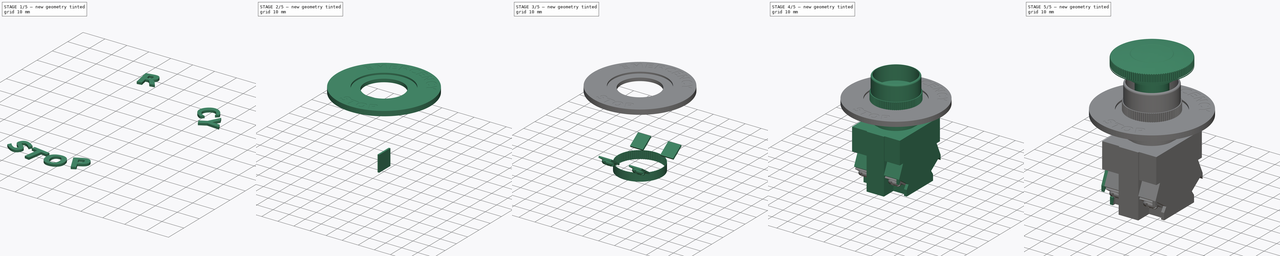
[diagram: build sequence overview — one tinted view per stage of 5, left to right]
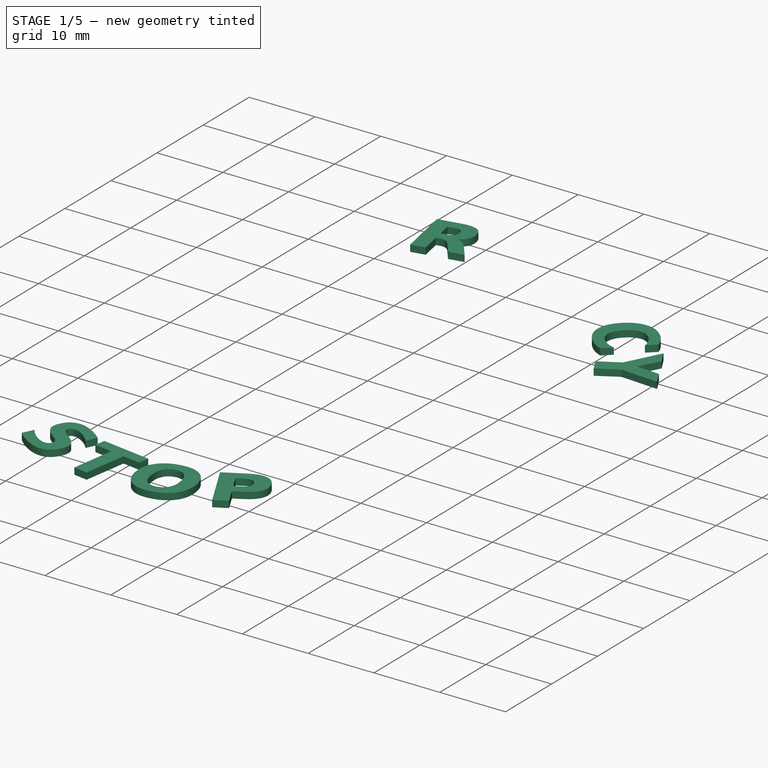
[diagram: stage 1 of 5 — iso view after this stage's code; geometry added in this stage tinted green]
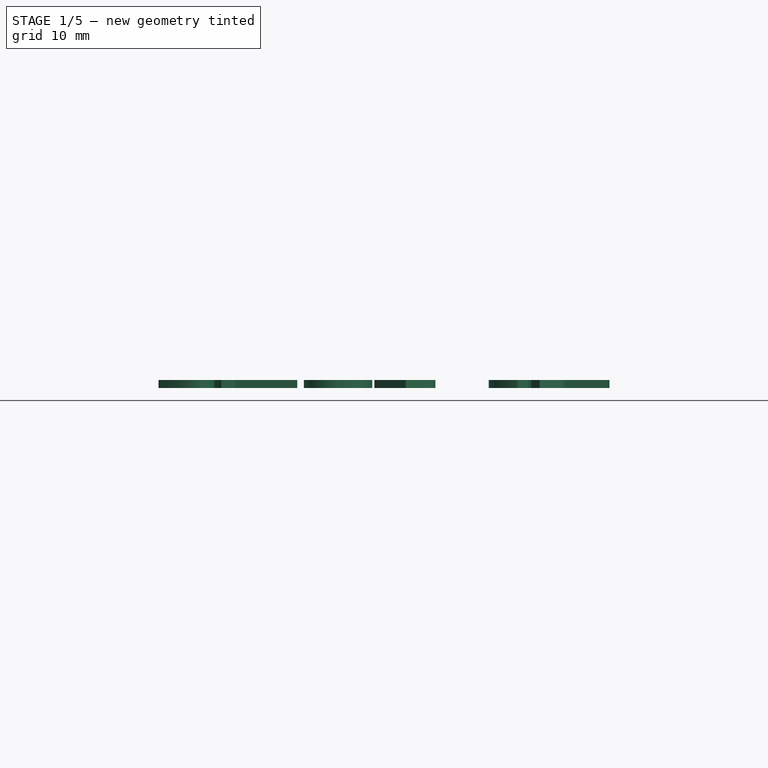
[diagram: stage 1 of 5 — front view after this stage's code; geometry added in this stage tinted green]
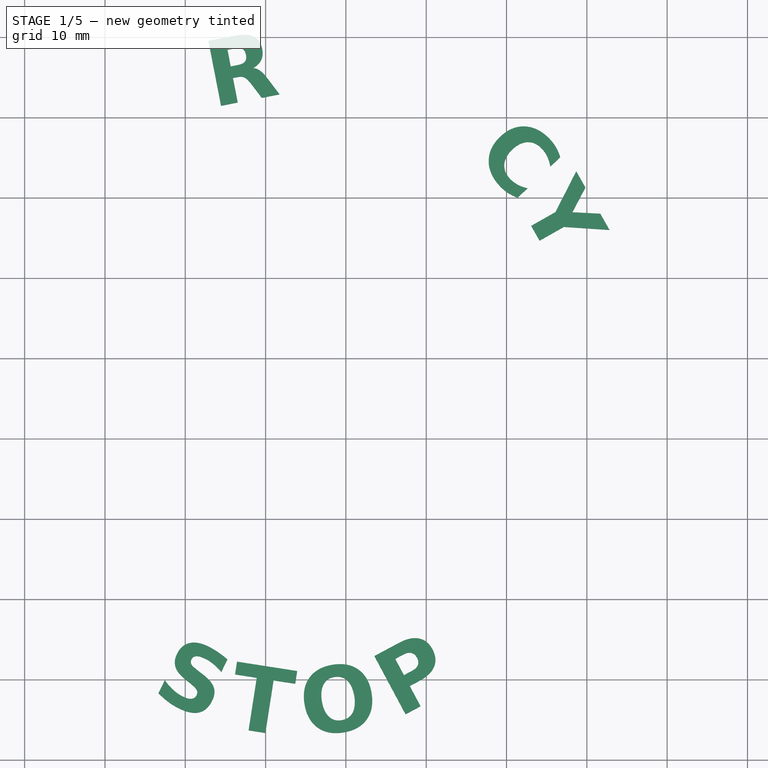
[diagram: stage 1 of 5 — top view after this stage's code; geometry added in this stage tinted green]
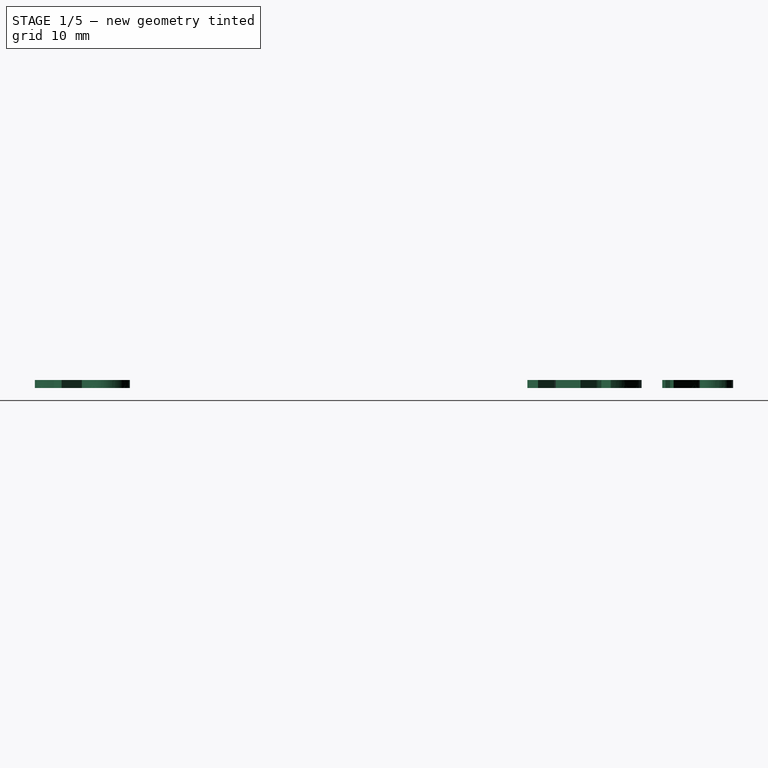
[diagram: stage 1 of 5 — right view after this stage's code; geometry added in this stage tinted green]
FCSTD DOCUMENT  (FreeCAD 0.16R6707 (Git))
Label: EmergencyButtonLAY37
License: All rights reserved
LicenseURL: http://en.wikipedia.org/wiki/All_rights_reserved
objects: Part::Feature×16, Part::Extrusion×16, Part::FeaturePython×11, Sketcher::SketchObject×8, Part::Cut×8, PartDesign::Revolution×4, PartDesign::Pad×4, Part::Cylinder×4, Part::Box×4, Part::MultiFuse×4, Part::Compound×4, Part::Mirroring×2, Part::Torus×1, Part::Fillet×1, App::DocumentObjectGroup×1
note: 95 computed .brp shape members not serialized (recipe doc carries the construction recipe); baked Part::Feature solids carry a one-line shape summary decoded from their .brp

FEATURE [Part::Extrusion] Extrude003
  Base = -> path4270
  Dir = (0,0,1)
  Solid = true
FEATURE [Part::Extrusion] Extrude004
  Base = -> path4270001
  Dir = (0,0,1)
  Solid = true
FEATURE [Part::Extrusion] Extrude008
  Base = -> path4278
  Dir = (0,0,1)
  Solid = true
FEATURE [Part::Extrusion] Extrude009
  Base = -> path4280
  Dir = (0,0,1)
  Solid = true
FEATURE [Part::Extrusion] Extrude012
  Base = -> path4283
  Dir = (0,0,1)
  Solid = true
FEATURE [Part::Extrusion] Extrude013
  Base = -> path4285
  Dir = (0,0,1)
  Solid = true
FEATURE [Part::Extrusion] Extrude014
  Base = -> path4287
  Dir = (0,0,1)
  Solid = true
FEATURE [Part::Extrusion] Extrude015
  Base = -> path4287001
  Dir = (0,0,1)
  Solid = true
FEATURE [Part::Extrusion] Extrude016
  Base = -> path4289
  Dir = (0,0,1)
  Solid = true
FEATURE [Part::Extrusion] Extrude017
  Base = -> path4289001
  Dir = (0,0,1)
  Solid = true
FEATURE [Part::Cut] Cut004
  Base = -> Extrude004
  Tool = -> Extrude003
FEATURE [Part::Cut] Cut005
  Base = -> Extrude016
  Tool = -> Extrude017
FEATURE [Part::Cut] Cut006
  Base = -> Extrude015
  Tool = -> Extrude014
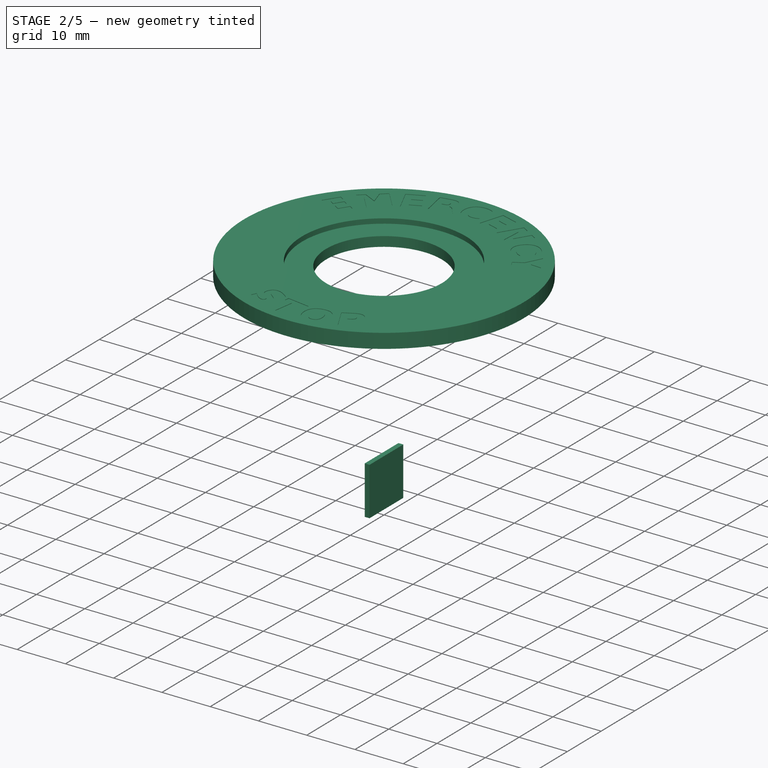
[diagram: stage 2 of 5 — iso view after this stage's code; geometry added in this stage tinted green]
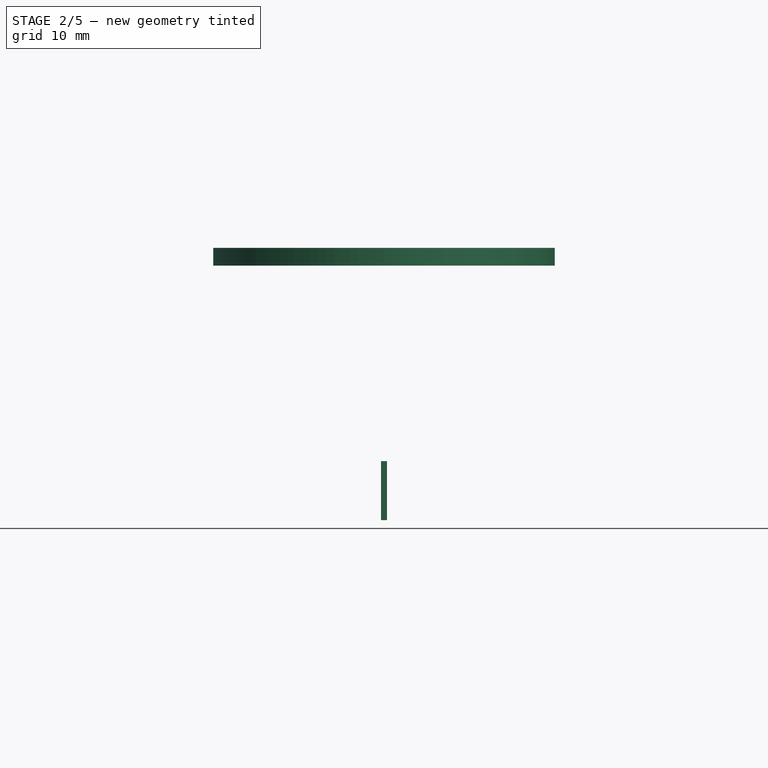
[diagram: stage 2 of 5 — front view after this stage's code; geometry added in this stage tinted green]
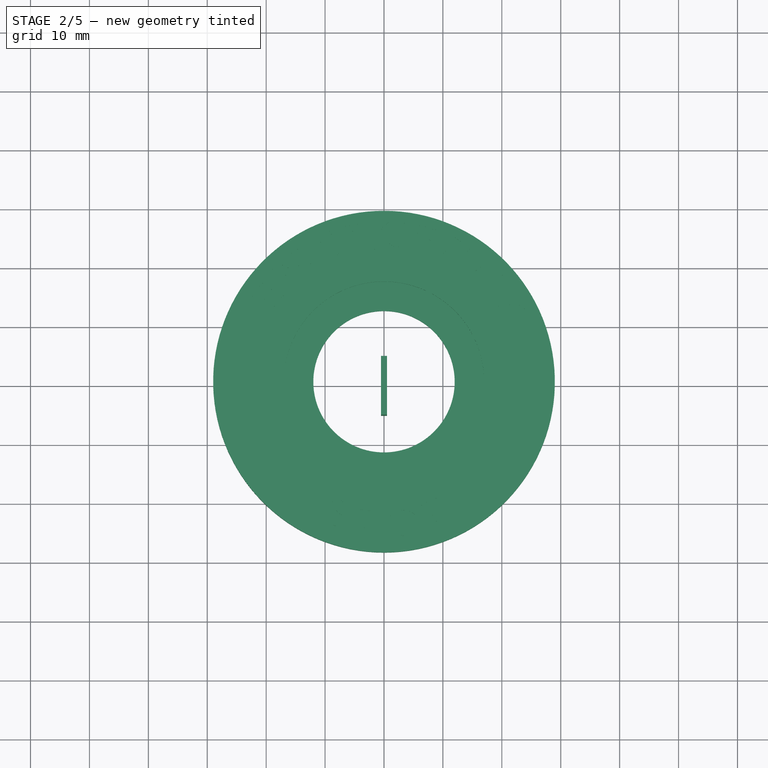
[diagram: stage 2 of 5 — top view after this stage's code; geometry added in this stage tinted green]
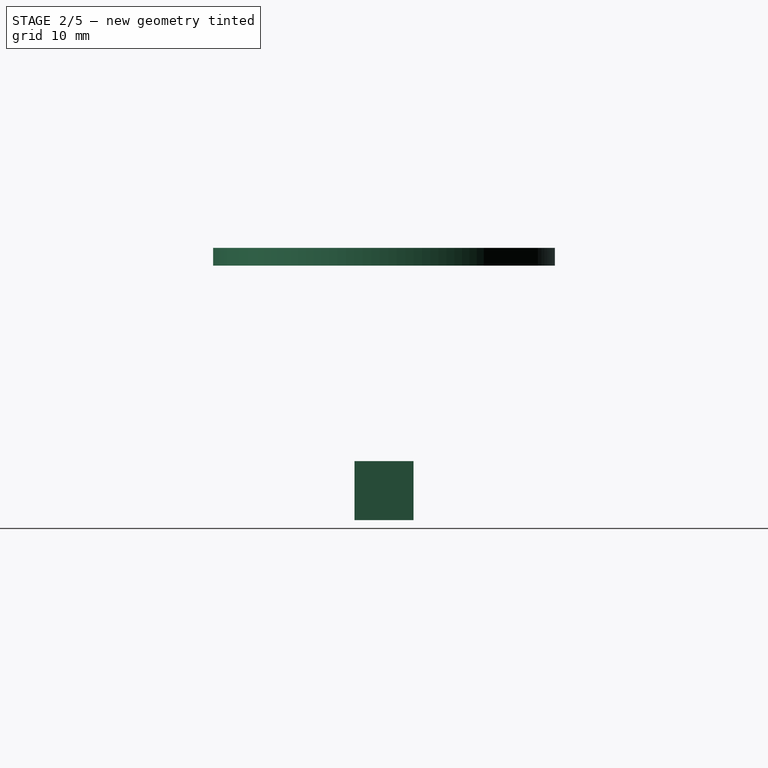
[diagram: stage 2 of 5 — right view after this stage's code; geometry added in this stage tinted green]
FEATURE [Part::Box] Box004  label="Cube004"
  Height = 10
  Length = 1
  Placement = pos=(-0.5,-5,1.8) rot=(0,0,1;0rad)
  Width = 10
FEATURE [Sketcher::SketchObject] Sketch007
  Placement = pos=(0,0,0) rot=(0.57735,0.57735,0.57735;2.0944rad)
  sketch-geometry (6):
    g0: LineSegment StartX=12 StartY=2 StartZ=0 EndX=17 EndY=2 EndZ=0
    g1: LineSegment StartX=17 StartY=2 StartZ=0 EndX=17 EndY=3 EndZ=0
    g2: LineSegment StartX=17 StartY=3 StartZ=0 EndX=29 EndY=3 EndZ=0
    g3: LineSegment StartX=29 StartY=3 StartZ=0 EndX=29 EndY=0 EndZ=0
    g4: LineSegment StartX=29 StartY=0 StartZ=0 EndX=12 EndY=0 EndZ=0
    g5: LineSegment StartX=12 StartY=0 StartZ=0 EndX=12 EndY=2 EndZ=0
  constraints (18):
    c: Coincident(g0,g1)
    c: Coincident(g1,g2)
    c: Horizontal(g2)
    c: Coincident(g2,g3)
    c: PointOnObject(g3,g-1)
    c: Vertical(g3)
    c: Coincident(g3,g4)
    c: PointOnObject(g4,g-1)
    c: Coincident(g4,g5)
    c: Coincident(g5,g0)
    c: Vertical(g5)
    c: Horizontal(g0)
    c: DistanceY(g3,g3) = 3
    c: Vertical(g1)
    c: DistanceY(g5,g5) = 2
    c: DistanceX(g0,g0) = 5
    c: DistanceX(g-1,g4) = 12
    c: DistanceX(g-1,g3) = 29
FEATURE [PartDesign::Revolution] Revolution003
  Angle = 360
  Axis = (0,0,1)
  Base = (0,0,0)
  Placement = pos=(0,0,0) rot=(0.57735,0.57735,0.57735;2.0944rad)
  ReferenceAxis = -> Sketch007 [V_Axis]
  Reversed = true
  Sketch = -> Sketch007
FEATURE [Part::Feature] path4264
  shape: bbox 10.09 x 9.286 x 2e-07 mm, 0 faces, 0 solids (baked)
FEATURE [Part::Feature] path4266
  shape: bbox 12.31 x 12.21 x 2e-07 mm, 0 faces, 0 solids (baked)
FEATURE [Part::Feature] path4268
  shape: bbox 8.763 x 9.874 x 2e-07 mm, 0 faces, 0 solids (baked)
FEATURE [Part::Feature] path4270
  shape: bbox 2.373 x 2.335 x 2e-07 mm, 0 faces, 0 solids (baked)
FEATURE [Part::Feature] path4270001
  shape: bbox 8.867 x 8.929 x 2e-07 mm, 0 faces, 0 solids (baked)
FEATURE [Part::Feature] path4272
  shape: bbox 7.317 x 8.67 x 2e-07 mm, 0 faces, 0 solids (baked)
FEATURE [Part::Feature] path4274
  shape: bbox 7.88 x 9.578 x 2e-07 mm, 0 faces, 0 solids (baked)
FEATURE [Part::Feature] path4276
  shape: bbox 10.58 x 10.87 x 2e-07 mm, 0 faces, 0 solids (baked)
FEATURE [Part::Feature] path4278
  shape: bbox 8.912 x 8.951 x 2e-07 mm, 0 faces, 0 solids (baked)
FEATURE [Part::Feature] path4280
  shape: bbox 9.753 x 8.635 x 2e-07 mm, 0 faces, 0 solids (baked)
FEATURE [Part::Feature] path4283
  shape: bbox 8.591 x 8.947 x 2e-07 mm, 0 faces, 0 solids (baked)
FEATURE [Part::Feature] path4285
  shape: bbox 7.741 x 8.878 x 2e-07 mm, 0 faces, 0 solids (baked)
FEATURE [Part::Feature] path4287
  shape: bbox 4.312 x 5.608 x 2e-07 mm, 0 faces, 0 solids (baked)
FEATURE [Part::Feature] path4287001
  shape: bbox 8.789 x 8.857 x 2e-07 mm, 0 faces, 0 solids (baked)
FEATURE [Part::Feature] path4289
  shape: bbox 7.691 x 9.583 x 2e-07 mm, 0 faces, 0 solids (baked)
FEATURE [Part::Feature] path4289001
  shape: bbox 2.91 x 2.834 x 2e-07 mm, 0 faces, 0 solids (baked)
FEATURE [Part::Extrusion] Extrude
  Base = -> path4264
  Dir = (0,0,1)
  Solid = true
FEATURE [Part::Extrusion] Extrude001
  Base = -> path4266
  Dir = (0,0,1)
  Solid = true
FEATURE [Part::Extrusion] Extrude002
  Base = -> path4268
  Dir = (0,0,1)
  Solid = true
FEATURE [Part::Extrusion] Extrude005
  Base = -> path4272
  Dir = (0,0,1)
  Solid = true
FEATURE [Part::Extrusion] Extrude006
  Base = -> path4274
  Dir = (0,0,1)
  Solid = true
FEATURE [Part::Extrusion] Extrude007
  Base = -> path4276
  Dir = (0,0,1)
  Solid = true
FEATURE [Part::Compound] Compound003  label="EmergencyLetters"
  Links = -> [Cut006,Cut005,Cut004,Extrude013,Extrude006,Extrude012,Extrude001,Extrude007,Extrude008,Extrude005,Extrude,Extrude009,Extrude002]
FEATURE [Part::FeaturePython] Clone009  label="Clone of EmergencyLetters"  # Draft clone (typed FeaturePython)
  Objects = -> [Compound003]
  Placement = pos=(-21,163,2.9) rot=(0,0,1;0rad)
  Scale = (0.62,0.62,1)
FEATURE [Part::Cut] Cut007  label="TextDisk"
  Base = -> Revolution003
  Tool = -> Clone009
FEATURE [App::DocumentObjectGroup] Group  label="Master"
  Group = -> [Cut001,Pad001,Fusion001,Cut002,Fusion003,Cut007,Compound003]
FEATURE [Part::FeaturePython] Clone010  label="Clone of TextDisk"  # Draft clone (typed FeaturePython)
  Objects = -> [Cut007]
  Placement = pos=(0,0,45) rot=(0,0,1;0rad)
  Scale = (1,1,1)
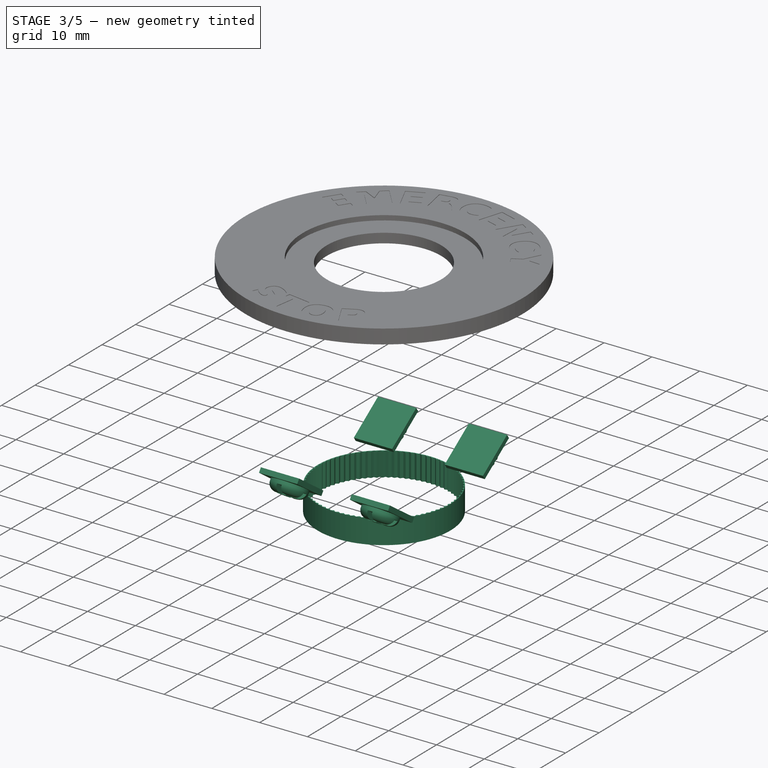
[diagram: stage 3 of 5 — iso view after this stage's code; geometry added in this stage tinted green]
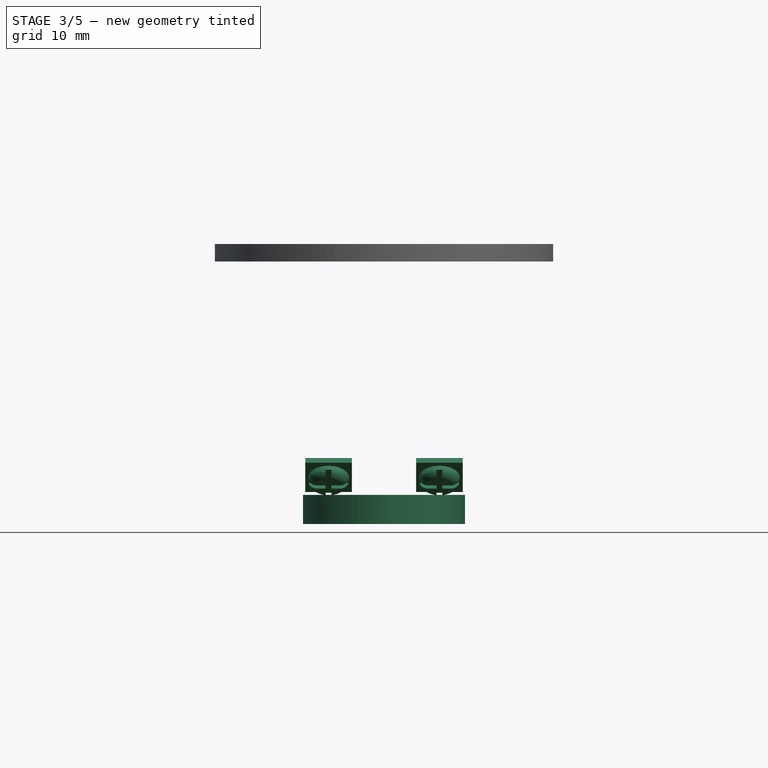
[diagram: stage 3 of 5 — front view after this stage's code; geometry added in this stage tinted green]
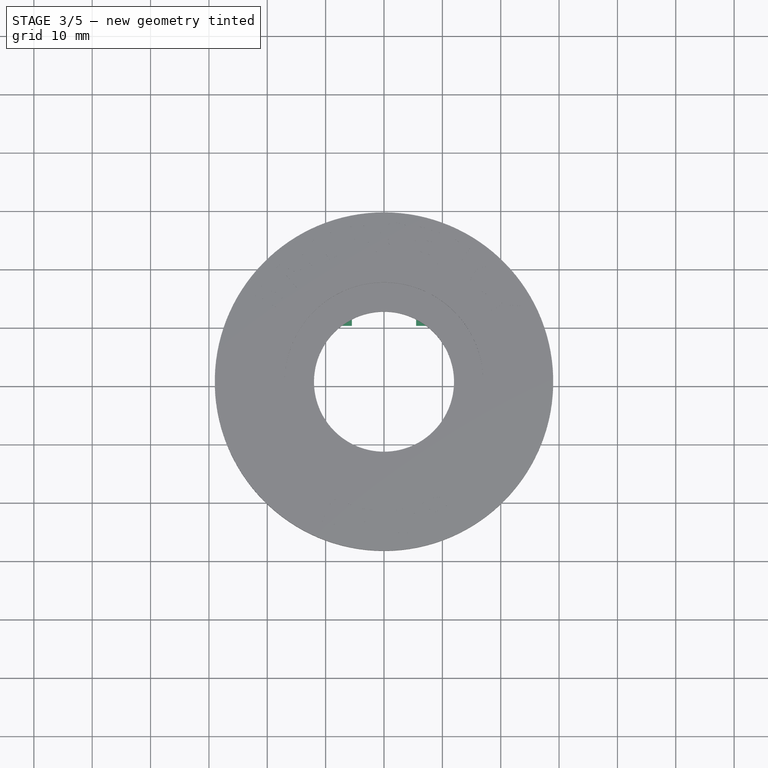
[diagram: stage 3 of 5 — top view after this stage's code; geometry added in this stage tinted green]
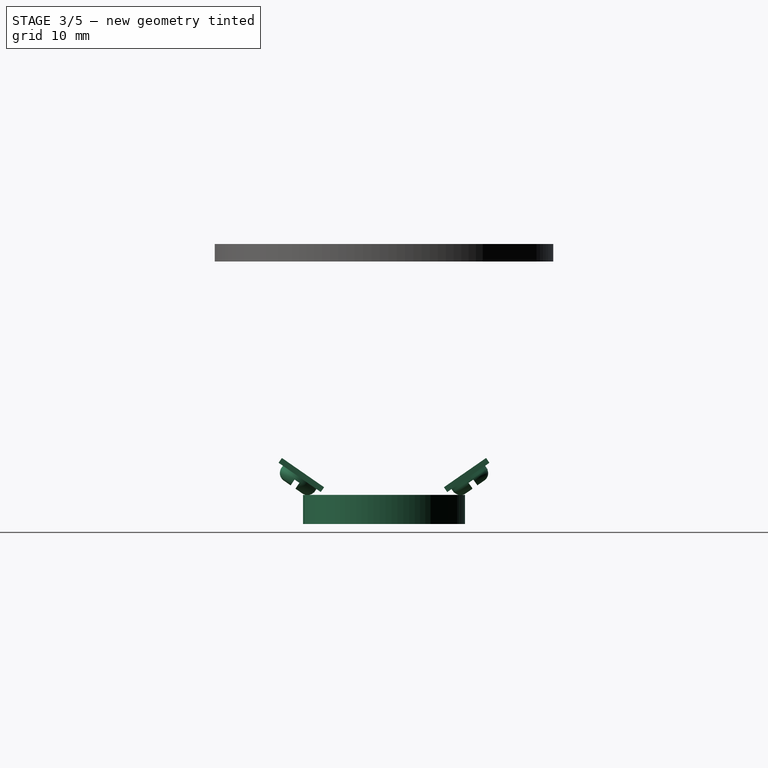
[diagram: stage 3 of 5 — right view after this stage's code; geometry added in this stage tinted green]
FEATURE [Sketcher::SketchObject] Sketch005
  sketch-geometry (3):
    g0: LineSegment StartX=0 StartY=-13.5 StartZ=0 EndX=-0.55 EndY=-13.8675 EndZ=0
    g1: LineSegment StartX=-0.55 StartY=-13.8675 StartZ=0 EndX=0.55 EndY=-13.8675 EndZ=0
    g2: LineSegment StartX=0.55 StartY=-13.8675 StartZ=0 EndX=0 EndY=-13.5 EndZ=0
  constraints (10):
    c: PointOnObject(g0,g-2)
    c: Coincident(g0,g1)
    c: Horizontal(g1)
    c: Coincident(g1,g2)
    c: PointOnObject(g2,g-2)
    c: Coincident(g2,g0)
    c: Symmetric(g0,g1,g-2)
    c: Angle(g0,g2) = 1.9635
    c: DistanceX(g1,g1) = 1.1
    c: DistanceY(g0,g-1) = 13.5
FEATURE [PartDesign::Pad] Pad003
  Length = 5
  Length2 = 100
  Sketch = -> Sketch005
  Type = 0
FEATURE [Part::FeaturePython] Array001  # Draft array (typed FeaturePython)
  Angle = 360
  ArrayType = 1
  Axis = (0,0,1)
  Base = -> Pad003
  Center = (0,0,0)
  Fuse = true
  IntervalAxis = (0,0,0)
  IntervalX = (1,0,0)
  IntervalY = (0,1,0)
  IntervalZ = (0,0,0)
  NumberPolar = 85
  NumberX = 3
  NumberY = 2
  NumberZ = 1
FEATURE [Part::Box] Box003  label="Cube003"
  Height = 1
  Length = 8
  Placement = pos=(-4,-4.4,0) rot=(0,0,1;0rad)
  Width = 8.8
FEATURE [Sketcher::SketchObject] Sketch006
  Placement = pos=(0,0,0) rot=(0.57735,0.57735,0.57735;2.0944rad)
  sketch-geometry (5):
    g0: ArcOfCircle CenterX=2 CenterY=1.5 CenterZ=0 NormalX=0 NormalY=0 NormalZ=1 Radius=1.5 StartAngle=6.28319 EndAngle=7.85398
    g1: LineSegment StartX=2 StartY=3 StartZ=0 EndX=0 EndY=3 EndZ=0
    g2: LineSegment StartX=0 StartY=3 StartZ=0 EndX=0 EndY=0 EndZ=0
    g3: LineSegment StartX=0 StartY=0 StartZ=0 EndX=3.5 EndY=0 EndZ=0
    g4: LineSegment StartX=3.5 StartY=0 StartZ=0 EndX=3.5 EndY=1.5 EndZ=0
  constraints (14):
    c: Tangent(g0,g1) = -1.5708
    c: Coincident(g1,g2)
    c: Coincident(g2,g-1)
    c: Coincident(g2,g3)
    c: PointOnObject(g3,g-1)
    c: Coincident(g3,g4)
    c: Coincident(g4,g0)
    c: Vertical(g4)
    c: Tangent(g0,g4)
    c: Horizontal(g1)
    c: Vertical(g2)
    c: DistanceX(g1,g1) = 2
    c: DistanceY(g4,g4) = 1.5
    c: DistanceY(g2,g2) = 3
FEATURE [PartDesign::Revolution] Revolution002
  Angle = 360
  Axis = (0,0,1)
  Base = (0,0,0)
  Placement = pos=(0,0,0) rot=(0.57735,0.57735,0.57735;2.0944rad)
  ReferenceAxis = -> Sketch006 [V_Axis]
  Reversed = true
  Sketch = -> Sketch006
FEATURE [Part::FeaturePython] Clone  label="Clone of Cube004"  # Draft clone (typed FeaturePython)
  Objects = -> [Box004]
  Placement = pos=(5,-0.5,1.8) rot=(0,0,1;1.5708rad)
  Scale = (1,1,1)
FEATURE [Part::MultiFuse] Fusion002
  Shapes = -> [Box004,Clone]
FEATURE [Part::Cut] Cut003
  Base = -> Revolution002
  Tool = -> Fusion002
FEATURE [Part::MultiFuse] Fusion003  label="WireConnector"
  Shapes = -> [Box003,Cut003]
FEATURE [Part::FeaturePython] Clone006  label="Clone of WireConnector"  # Draft clone (typed FeaturePython)
  Objects = -> [Fusion003]
  Placement = pos=(9.5,13.8797,8.81769) rot=(1,0,0;3.74804rad)
  Scale = (1,1,1)
FEATURE [Part::Mirroring] Part__Mirroring  label="Clone of WireConnector (Mirror #1)"
  Base = (0,0,0)
  Normal = (1,0,0)
  Source = -> Clone006
FEATURE [Part::Compound] Compound001
  Links = -> [Clone006,Part__Mirroring]
FEATURE [Part::Mirroring] Part__Mirroring001  label="Compound001 (Mirror #2)"
  Base = (0,0,0)
  Normal = (0,1,0)
  Source = -> Compound001
FEATURE [Part::Compound] Compound002
  Links = -> [Compound001,Part__Mirroring001]
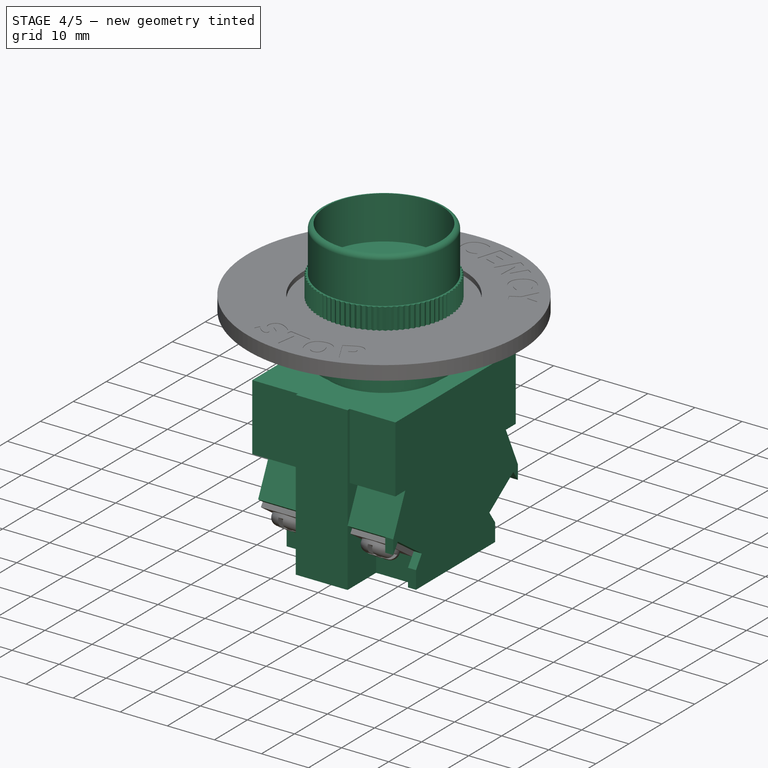
[diagram: stage 4 of 5 — iso view after this stage's code; geometry added in this stage tinted green]
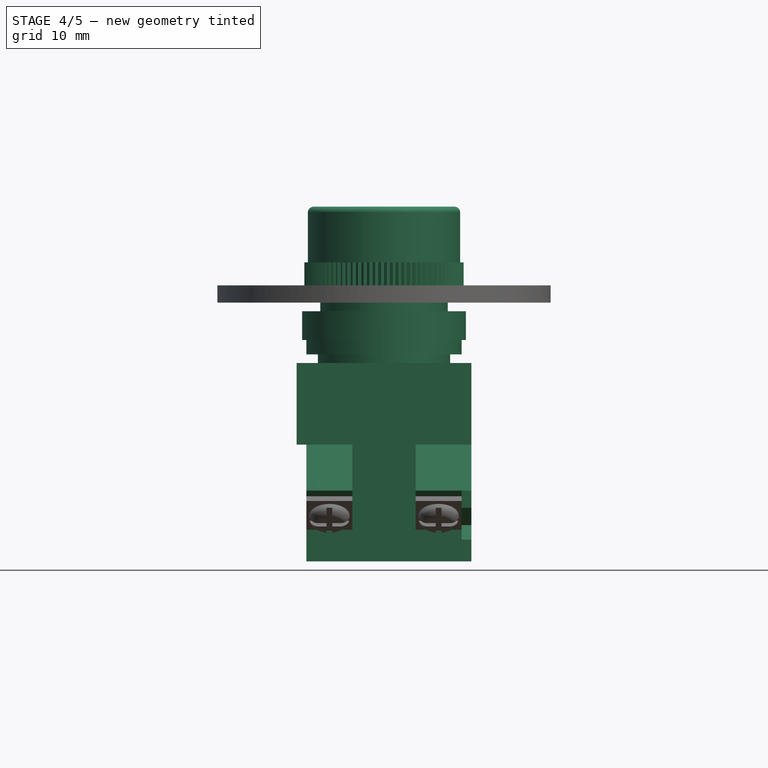
[diagram: stage 4 of 5 — front view after this stage's code; geometry added in this stage tinted green]
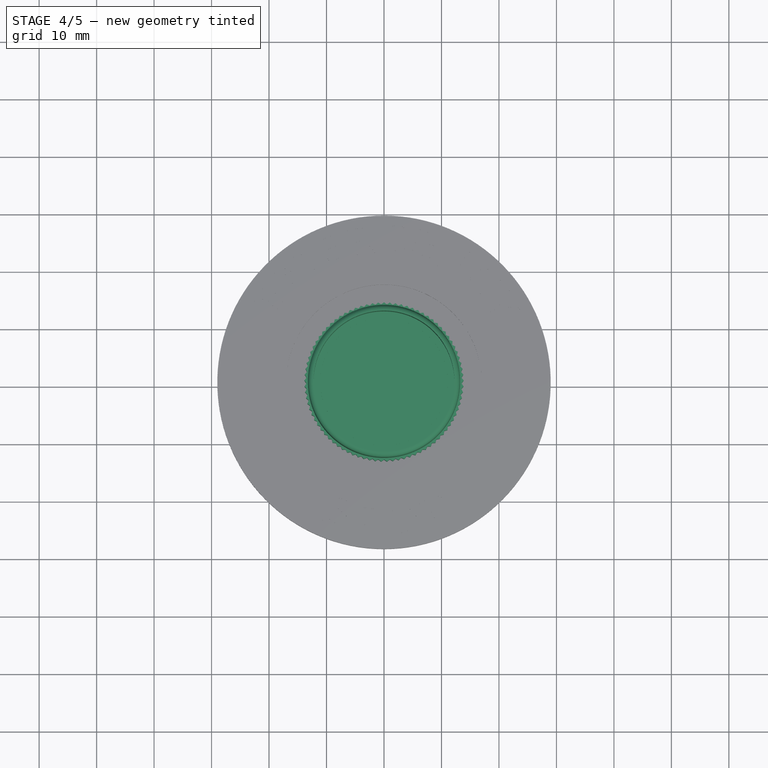
[diagram: stage 4 of 5 — top view after this stage's code; geometry added in this stage tinted green]
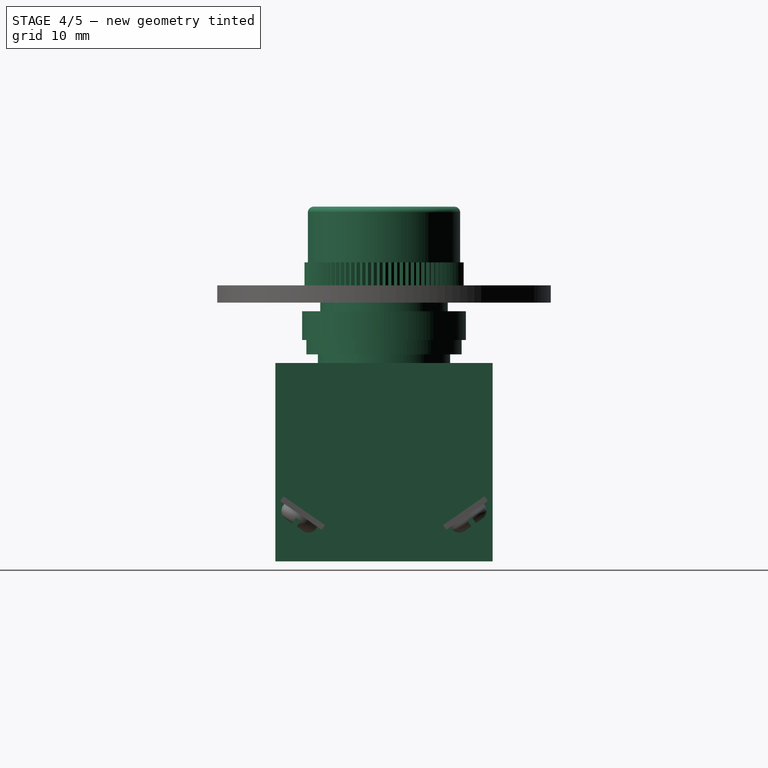
[diagram: stage 4 of 5 — right view after this stage's code; geometry added in this stage tinted green]
FEATURE [Sketcher::SketchObject] Sketch003
  Placement = pos=(0,0,0) rot=(0.57735,0.57735,0.57735;2.0944rad)
  sketch-geometry (14):
    g0: LineSegment StartX=-12 StartY=0 StartZ=0 EndX=12 EndY=0 EndZ=0
    g1: LineSegment StartX=12 StartY=0 StartZ=0 EndX=12 EndY=3.77 EndZ=0
    g2: LineSegment StartX=12 StartY=3.77 StartZ=0 EndX=10.25 EndY=6.2929 EndZ=0
    g3: LineSegment StartX=10.25 StartY=6.2929 StartZ=0 EndX=17.4984 EndY=11.3207 EndZ=0
    g4: LineSegment StartX=17.4984 StartY=11.3207 StartZ=0 EndX=18.9 EndY=9.3 EndZ=0
    g5: LineSegment StartX=18.9 StartY=9.3 StartZ=0 EndX=18.9 EndY=12.3 EndZ=0
    g6: LineSegment StartX=18.9 StartY=12.3 StartZ=0 EndX=15.25 EndY=20.3 EndZ=0
    g7: LineSegment StartX=15.25 StartY=20.3 StartZ=0 EndX=-15.25 EndY=20.3 EndZ=0
    g8: LineSegment StartX=-15.25 StartY=20.3 StartZ=0 EndX=-18.9 EndY=12.3 EndZ=0
    g9: LineSegment StartX=-18.9 StartY=12.3 StartZ=0 EndX=-18.9 EndY=9.3 EndZ=0
    g10: LineSegment StartX=-18.9 StartY=9.3 StartZ=0 EndX=-17.4984 EndY=11.3207 EndZ=0
    g11: LineSegment StartX=-17.4984 StartY=11.3207 StartZ=0 EndX=-10.25 EndY=6.2929 EndZ=0
    g12: LineSegment StartX=-10.25 StartY=6.2929 StartZ=0 EndX=-12 EndY=3.77 EndZ=0
    g13: LineSegment StartX=-12 StartY=3.77 StartZ=0 EndX=-12 EndY=0 EndZ=0
  constraints (39):
    c: PointOnObject(g0,g-1)
    c: Coincident(g0,g1)
    c: Vertical(g1)
    c: Coincident(g1,g2)
    c: Coincident(g2,g3)
    c: Coincident(g3,g4)
    c: Coincident(g4,g5)
    c: Vertical(g5)
    c: Coincident(g5,g6)
    c: Coincident(g6,g7)
    c: Horizontal(g7)
    c: Perpendicular(g3,g2)
    c: Perpendicular(g3,g4)
    c: DistanceY(g0,g7) = 20.3
    c: DistanceX(g2,g2) = 1.75
    c: DistanceY(g6,g6) = 8
    c: DistanceX(g6,g6) = 3.65
    c: DistanceY(g5,g5) = 3
    c: Angle(g2,g1) = 2.53514
    c: DistanceY(g1,g1) = 3.77
    c: Coincident(g7,g8)
    c: Coincident(g8,g9)
    c: Vertical(g9)
    c: Coincident(g9,g10)
    c: Coincident(g10,g11)
    c: Coincident(g11,g12)
    c: Coincident(g12,g13)
    c: PointOnObject(g13,g-1)
    c: Vertical(g13)
    c: Coincident(g0,g13)
    c: DistanceX(g0,g0) = 24
    c: Symmetric(g0,g0,g-2)
    c: DistanceX(g7,g7) = 30.5
    c: Symmetric(g7,g6,g-2)
    c: Symmetric(g8,g5,g-2)
    c: Symmetric(g4,g9,g-2)
    c: Symmetric(g10,g3,g-2)
    c: Symmetric(g11,g2,g-2)
    c: Symmetric(g12,g1,g-2)
FEATURE [PartDesign::Pad] Pad001  label="SideCover"
  Length = 1.7
  Length2 = 100
  Placement = pos=(0,0,0) rot=(0.57735,0.57735,0.57735;2.0944rad)
  Sketch = -> Sketch003
  Type = 0
FEATURE [Part::Cylinder] Cylinder
  Angle = 360
  Height = 2.5
  Placement = pos=(0,0,34.5) rot=(0,0,1;0rad)
  Radius = 11.5
FEATURE [Part::Cylinder] Cylinder001
  Angle = 360
  Height = 9
  Placement = pos=(0,0,43.5) rot=(0,0,1;0rad)
  Radius = 11.1
FEATURE [Part::Cylinder] Cylinder002
  Angle = 360
  Height = 2.5
  Placement = pos=(0,0,36) rot=(0,0,1;0rad)
  Radius = 13.5
FEATURE [Part::Cylinder] Cylinder003
  Angle = 360
  Height = 5
  Placement = pos=(0,0,38.5) rot=(0,0,1;0rad)
  Radius = 14.25
FEATURE [Part::Box] Box  label="Cube"
  Height = 34.5
  Length = 11
  Placement = pos=(-5.5,-18.9,0) rot=(0,0,1;0rad)
  Width = 37.8
FEATURE [Part::Box] Box001  label="Cube001"
  Height = 14.2
  Length = 30.4
  Placement = pos=(-15.2,-18.25,20.3) rot=(0,0,1;0rad)
  Width = 36.5
FEATURE [Sketcher::SketchObject] Sketch
  Placement = pos=(0,0,0) rot=(0.57735,0.57735,0.57735;2.0944rad)
  sketch-geometry (8):
    g0: LineSegment StartX=10.25 StartY=0 StartZ=0 EndX=10.25 EndY=6.3 EndZ=0
    g1: LineSegment StartX=10.25 StartY=6.3 StartZ=0 EndX=18.9 EndY=12.3 EndZ=0
    g2: LineSegment StartX=18.9 StartY=12.3 StartZ=0 EndX=15.25 EndY=20.3 EndZ=0
    g3: LineSegment StartX=15.25 StartY=20.3 StartZ=0 EndX=-15.25 EndY=20.3 EndZ=0
    g4: LineSegment StartX=-15.25 StartY=20.3 StartZ=0 EndX=-18.9 EndY=12.3 EndZ=0
    g5: LineSegment StartX=-18.9 StartY=12.3 StartZ=0 EndX=-10.25 EndY=6.3 EndZ=0
    g6: LineSegment StartX=-10.25 StartY=6.3 StartZ=0 EndX=-10.25 EndY=0 EndZ=0
    g7: LineSegment StartX=-10.25 StartY=0 StartZ=0 EndX=10.25 EndY=0 EndZ=0
  constraints (22):
    c: PointOnObject(g0,g-1)
    c: Vertical(g0)
    c: Coincident(g0,g1)
    c: Coincident(g1,g2)
    c: Coincident(g2,g3)
    c: Horizontal(g3)
    c: Coincident(g3,g4)
    c: Coincident(g4,g5)
    c: Coincident(g5,g6)
    c: PointOnObject(g6,g-1)
    c: Vertical(g6)
    c: Symmetric(g0,g5,g-2)
    c: Symmetric(g4,g1,g-2)
    c: Symmetric(g2,g3,g-2)
    c: Coincident(g7,g6)
    c: Coincident(g7,g0)
    c: DistanceX(g7,g7) = 20.5
    c: DistanceY(g0,g0) = 6.3
    c: DistanceX(g-1,g1) = 18.9
    c: DistanceY(g-1,g1) = 12.3
    c: DistanceY(g-1,g2) = 20.3
    c: DistanceX(g3,g3) = 30.5
FEATURE [PartDesign::Pad] Pad002
  Length = 27
  Length2 = 100
  Midplane = true
  Placement = pos=(0,0,0) rot=(0.57735,0.57735,0.57735;2.0944rad)
  Sketch = -> Sketch
  Type = 0
FEATURE [Sketcher::SketchObject] Sketch004
  Placement = pos=(0,0,0) rot=(0.57735,0.57735,0.57735;2.0944rad)
  sketch-geometry (8):
    g0: LineSegment StartX=12.25 StartY=14.2 StartZ=0 EndX=12.25 EndY=5 EndZ=0
    g1: LineSegment StartX=12.25 StartY=5 StartZ=0 EndX=11.1 EndY=5 EndZ=0
    g2: LineSegment StartX=11.1 StartY=5 StartZ=0 EndX=11.1 EndY=0 EndZ=0
    g3: LineSegment StartX=11.1 StartY=0 StartZ=0 EndX=13.85 EndY=0 EndZ=0
    g4: LineSegment StartX=13.85 StartY=0 StartZ=0 EndX=13.85 EndY=4.5 EndZ=0
    g5: LineSegment StartX=13.85 StartY=4.5 StartZ=0 EndX=13.25 EndY=4.5 EndZ=0
    g6: LineSegment StartX=13.25 StartY=4.5 StartZ=0 EndX=13.25 EndY=13.2 EndZ=0
    g7: ArcOfCircle CenterX=12.25 CenterY=13.2 CenterZ=0 NormalX=0 NormalY=0 NormalZ=1 Radius=1 StartAngle=6.28318 EndAngle=7.85398
  constraints (25):
    c: Vertical(g0)
    c: Coincident(g0,g1)
    c: Horizontal(g1)
    c: Coincident(g1,g2)
    c: PointOnObject(g2,g-1)
    c: Vertical(g2)
    c: Coincident(g2,g3)
    c: PointOnObject(g3,g-1)
    c: Coincident(g3,g4)
    c: Vertical(g4)
    c: Coincident(g4,g5)
    c: Coincident(g5,g6)
    c: Vertical(g6)
    c: Horizontal(g5)
    c: DistanceX(g-1,g0) = 12.25
    c: DistanceY(g-1,g0) = 14.2
    c: DistanceX(g-1,g2) = 11.1
    c: DistanceX(g3,g3) = 2.75
    c: DistanceY(g4,g4) = 4.5
    c: DistanceY(g2,g2) = 5
    c: DistanceX(g5,g5) = 0.6
    c: Coincident(g7,g6)
    c: Coincident(g7,g0)
    c: Tangent(g7,g6)
    c: Perpendicular(g7,g0)
FEATURE [PartDesign::Revolution] Revolution001
  Angle = 360
  Axis = (0,0,1)
  Base = (0,0,0)
  Placement = pos=(0,0,0) rot=(0.57735,0.57735,0.57735;2.0944rad)
  ReferenceAxis = -> Sketch004 [V_Axis]
  Reversed = true
  Sketch = -> Sketch004
FEATURE [Part::Cut] Cut002  label="Fixing"
  Base = -> Revolution001
  Tool = -> Array001
FEATURE [Part::FeaturePython] Clone004  label="Clone of SideCover001"  # Draft clone (typed FeaturePython)
  Objects = -> [Pad001]
  Placement = pos=(13.5,0,0) rot=(0.57735,0.57735,0.57735;2.0944rad)
  Scale = (1,1,1)
FEATURE [Part::FeaturePython] Clone005  label="Clone of Fixing"  # Draft clone (typed FeaturePython)
  Objects = -> [Cut002]
  Placement = pos=(0,0,47.5) rot=(0,0,1;0rad)
  Scale = (1,1,1)
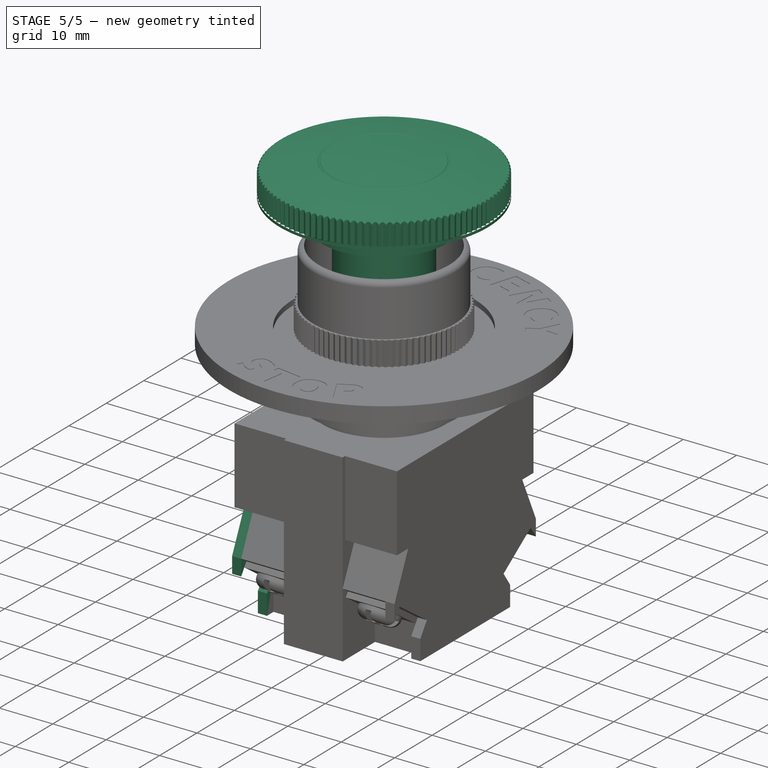
[diagram: stage 5 of 5 — iso view after this stage's code; geometry added in this stage tinted green]
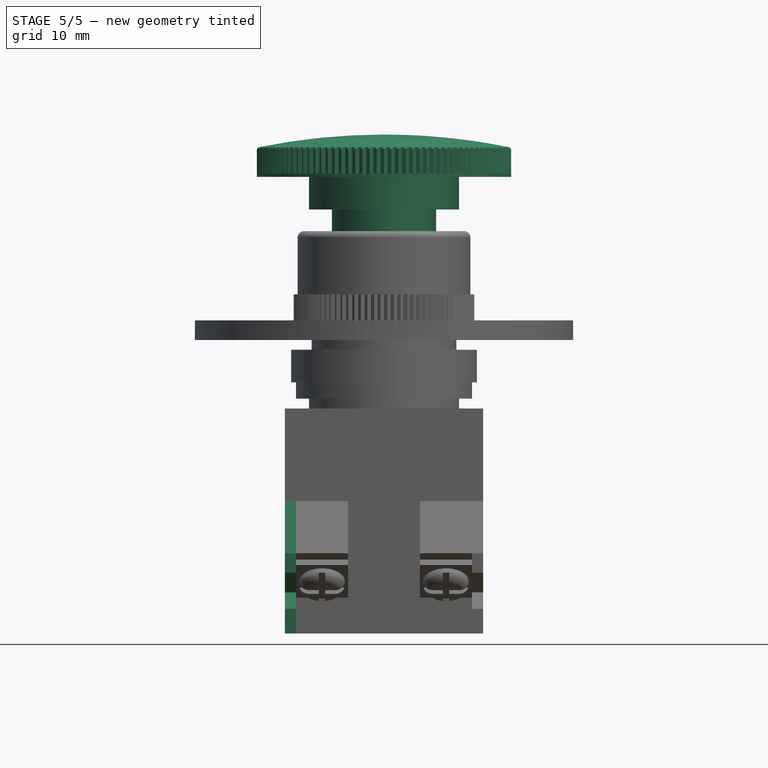
[diagram: stage 5 of 5 — front view after this stage's code; geometry added in this stage tinted green]
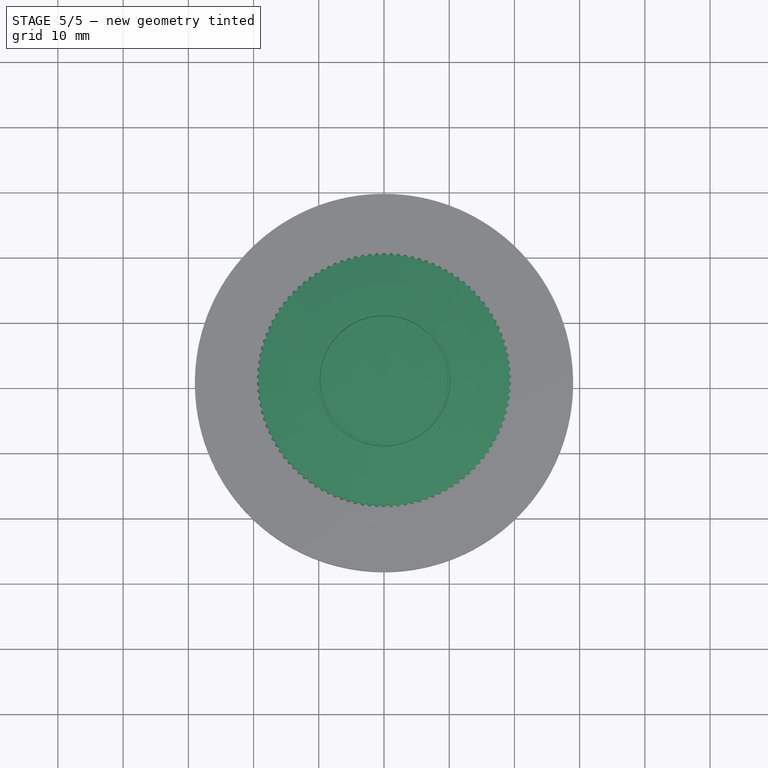
[diagram: stage 5 of 5 — top view after this stage's code; geometry added in this stage tinted green]
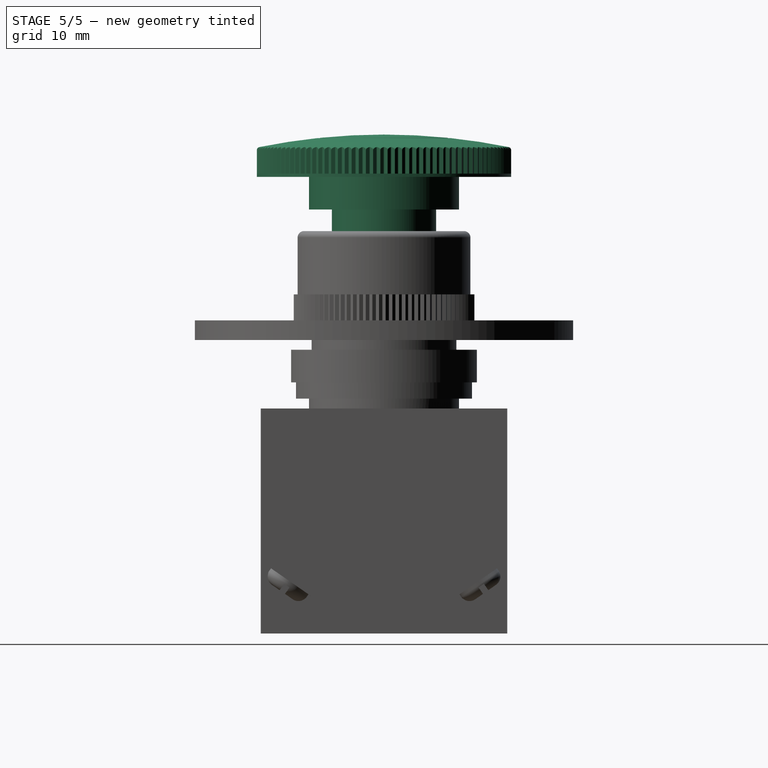
[diagram: stage 5 of 5 — right view after this stage's code; geometry added in this stage tinted green]
FEATURE [Sketcher::SketchObject] Sketch001
  Placement = pos=(0,0,0) rot=(1,0,0;1.5708rad)
  sketch-geometry (10):
    g0: LineSegment StartX=0 StartY=0 StartZ=0 EndX=8 EndY=0 EndZ=0
    g1: LineSegment StartX=8 StartY=0 StartZ=0 EndX=8 EndY=12.5 EndZ=0
    g2: LineSegment StartX=8 StartY=12.5 StartZ=0 EndX=11.5 EndY=12.5 EndZ=0
    g3: LineSegment StartX=11.5 StartY=12.5 StartZ=0 EndX=11.5 EndY=21 EndZ=0
    g4: LineSegment StartX=17.5 StartY=20.5 StartZ=0 EndX=17.5 EndY=17.5 EndZ=0
    g5: LineSegment StartX=17.5 StartY=17.5 StartZ=0 EndX=19.5 EndY=17.5 EndZ=0
    g6: LineSegment StartX=19.5 StartY=17.5 StartZ=0 EndX=19.5 EndY=22 EndZ=0
    g7: ArcOfCircle CenterX=0 CenterY=-72.0625 CenterZ=0 NormalX=0 NormalY=0 NormalZ=1 Radius=96.0625 StartAngle=1.36638 EndAngle=1.5708
    g8: ArcOfCircle CenterX=0 CenterY=-153.25 CenterZ=0 NormalX=0 NormalY=0 NormalZ=1 Radius=174.629 StartAngle=1.47042 EndAngle=1.50489
    g9: LineSegment StartX=0 StartY=24 StartZ=0 EndX=0 EndY=0 EndZ=0
  constraints (31):
    c: Coincident(g-1,g0)
    c: PointOnObject(g0,g-1)
    c: Coincident(g0,g1)
    c: Vertical(g1)
    c: Coincident(g1,g2)
    c: Horizontal(g2)
    c: Coincident(g2,g3)
    c: Vertical(g3)
    c: Vertical(g4)
    c: Coincident(g4,g5)
    c: Coincident(g5,g6)
    c: Vertical(g6)
    c: Coincident(g7,g6)
    c: PointOnObject(g7,g-2)
    c: Perpendicular(g7,g-2)
    c: DistanceX(g0,g0) = 8
    c: DistanceY(g1,g1) = 12.5
    c: DistanceX(g2,g2) = 3.5
    c: DistanceY(g3,g3) = 8.5
    c: Coincident(g8,g3)
    c: Coincident(g8,g4)
    c: Horizontal(g5)
    c: PointOnObject(g8,g-2)
    c: DistanceY(g4,g4) = 3
    c: DistanceX(g-1,g4) = 17.5
    c: DistanceY(g-1,g4) = 17.5
    c: DistanceX(g5,g5) = 2
    c: Coincident(g9,g7)
    c: Coincident(g9,g-1)
    c: DistanceY(g9,g9) = 24
    c: DistanceY(g6,g6) = 4.5
FEATURE [PartDesign::Revolution] Revolution
  Angle = 360
  Axis = (0,0,1)
  Base = (0,0,0)
  Placement = pos=(0,0,0) rot=(1,0,0;1.5708rad)
  ReferenceAxis = -> Sketch001 [V_Axis]
  Reversed = true
  Sketch = -> Sketch001
FEATURE [Part::Torus] Torus
  Angle1 = -180
  Angle2 = 180
  Angle3 = 360
  Placement = pos=(0,0,23.6) rot=(0,0,1;0rad)
  Radius1 = 10
  Radius2 = 0.25
FEATURE [Part::Cut] Cut
  Base = -> Revolution
  Tool = -> Torus
FEATURE [Part::Fillet] Fillet
  Base = -> Cut
  Edges = 1 edges r=0.5: [Edge12]
FEATURE [Sketcher::SketchObject] Sketch002
  Placement = pos=(0,0,18) rot=(0,0,1;0rad)
  sketch-geometry (4):
    g0: LineSegment StartX=19.5378 StartY=0.625 StartZ=0 EndX=19.15 EndY=0.05 EndZ=0
    g1: LineSegment StartX=19.15 StartY=0.05 StartZ=0 EndX=19.15 EndY=-0.05 EndZ=0
    g2: LineSegment StartX=19.15 StartY=-0.05 StartZ=0 EndX=19.5378 EndY=-0.625 EndZ=0
    g3: LineSegment StartX=19.5378 StartY=-0.625 StartZ=0 EndX=19.5378 EndY=0.625 EndZ=0
  constraints (12):
    c: Coincident(g0,g1)
    c: Vertical(g1)
    c: Coincident(g1,g2)
    c: Coincident(g2,g3)
    c: Coincident(g3,g0)
    c: Vertical(g3)
    c: Symmetric(g1,g0,g-1)
    c: Symmetric(g2,g0,g-1)
    c: Angle(g0,g3) = 0.593412
    c: DistanceX(g-1,g1) = 19.15
    c: DistanceY(g1,g1) = 0.1
    c: DistanceY(g3,g3) = 1.25
FEATURE [PartDesign::Pad] Pad
  Length = 5
  Length2 = 100
  Placement = pos=(0,0,18) rot=(0,0,1;0rad)
  Sketch = -> Sketch002
  Type = 0
FEATURE [Part::FeaturePython] Array  # Draft array (typed FeaturePython)
  Angle = 360
  ArrayType = 1
  Axis = (0,0,1)
  Base = -> Pad
  Center = (0,0,0)
  Fuse = true
  IntervalAxis = (0,0,0)
  IntervalX = (1,0,0)
  IntervalY = (0,1,0)
  IntervalZ = (0,0,0)
  NumberPolar = 110
  NumberX = 2
  NumberY = 2
  NumberZ = 1
FEATURE [Part::Cut] Cut001  label="TopButton"
  Base = -> Fillet
  Tool = -> Array
FEATURE [Part::MultiFuse] Fusion
  Shapes = -> [Box001,Cylinder,Cylinder003,Box,Cylinder002,Cylinder001]
FEATURE [Part::MultiFuse] Fusion001  label="Body"
  Shapes = -> [Fusion,Pad002]
FEATURE [Part::FeaturePython] Clone001  label="Clone of TopButton"  # Draft clone (typed FeaturePython)
  Objects = -> [Cut001]
  Placement = pos=(0,0,52.5) rot=(0,0,1;0rad)
  Scale = (1,1,1)
FEATURE [Part::FeaturePython] Clone002  label="Clone of SideCover"  # Draft clone (typed FeaturePython)
  Objects = -> [Pad001]
  Placement = pos=(-15.2,0,0) rot=(0.57735,0.57735,0.57735;2.0944rad)
  Scale = (1,1,1)
FEATURE [Part::FeaturePython] Clone003  label="Clone of Body"  # Draft clone (typed FeaturePython)
  Objects = -> [Fusion001]
  Scale = (1,1,1)
FEATURE [Part::Compound] Compound  label="EmergencyButton_LAY37"
  Links = -> [Compound002,Clone001,Clone004,Clone003,Clone010,Clone005,Clone002]
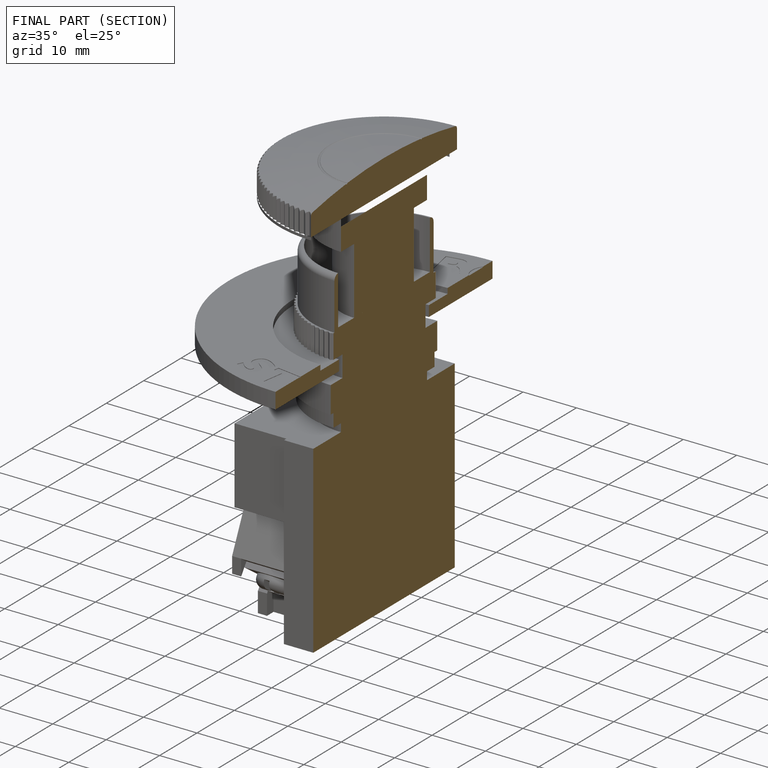
[diagram: finished part — half-section view (interior)]
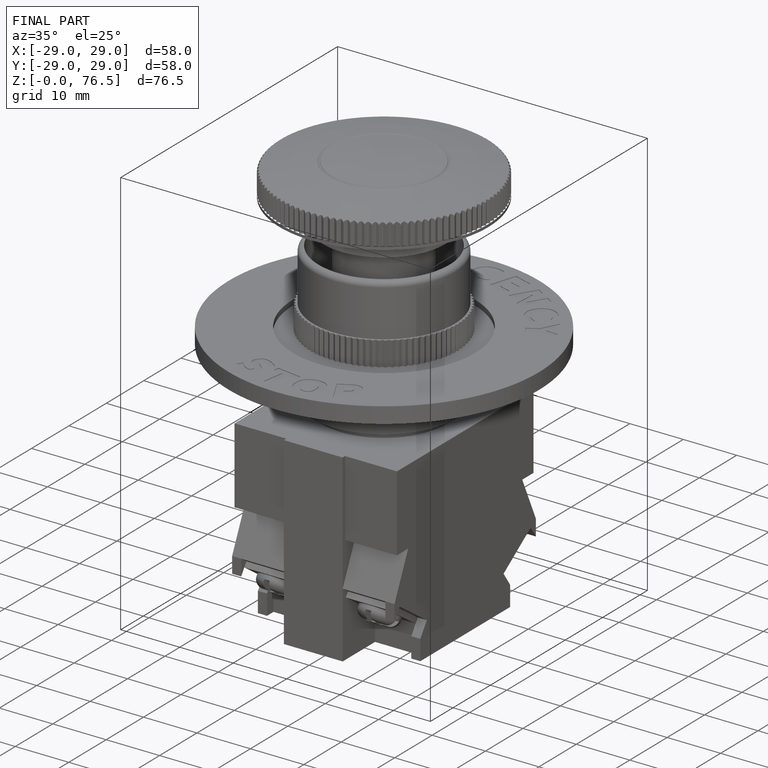
[diagram: finished part — iso view with bounding-box wireframe]
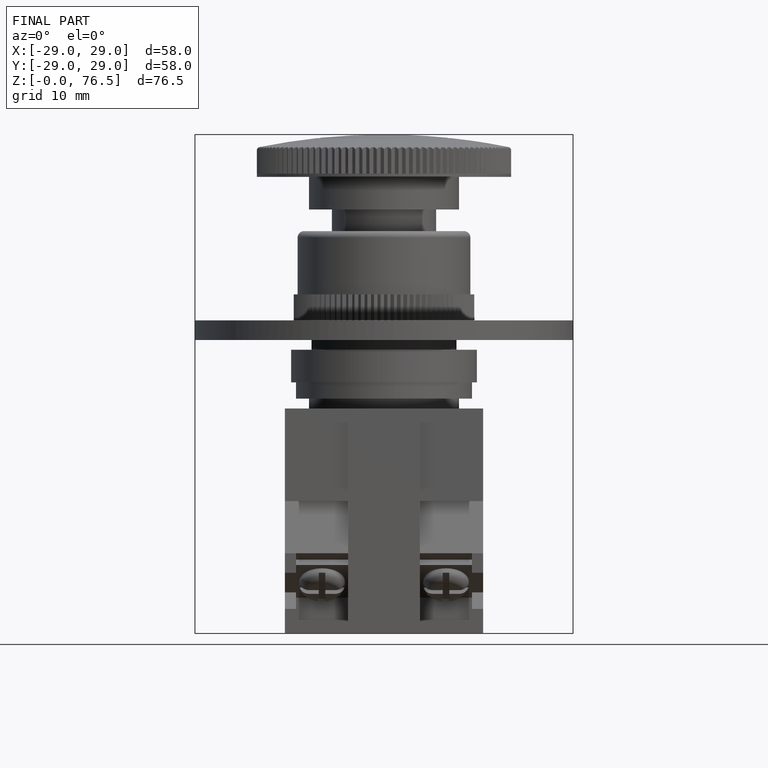
[diagram: finished part — front view with bounding-box wireframe]
